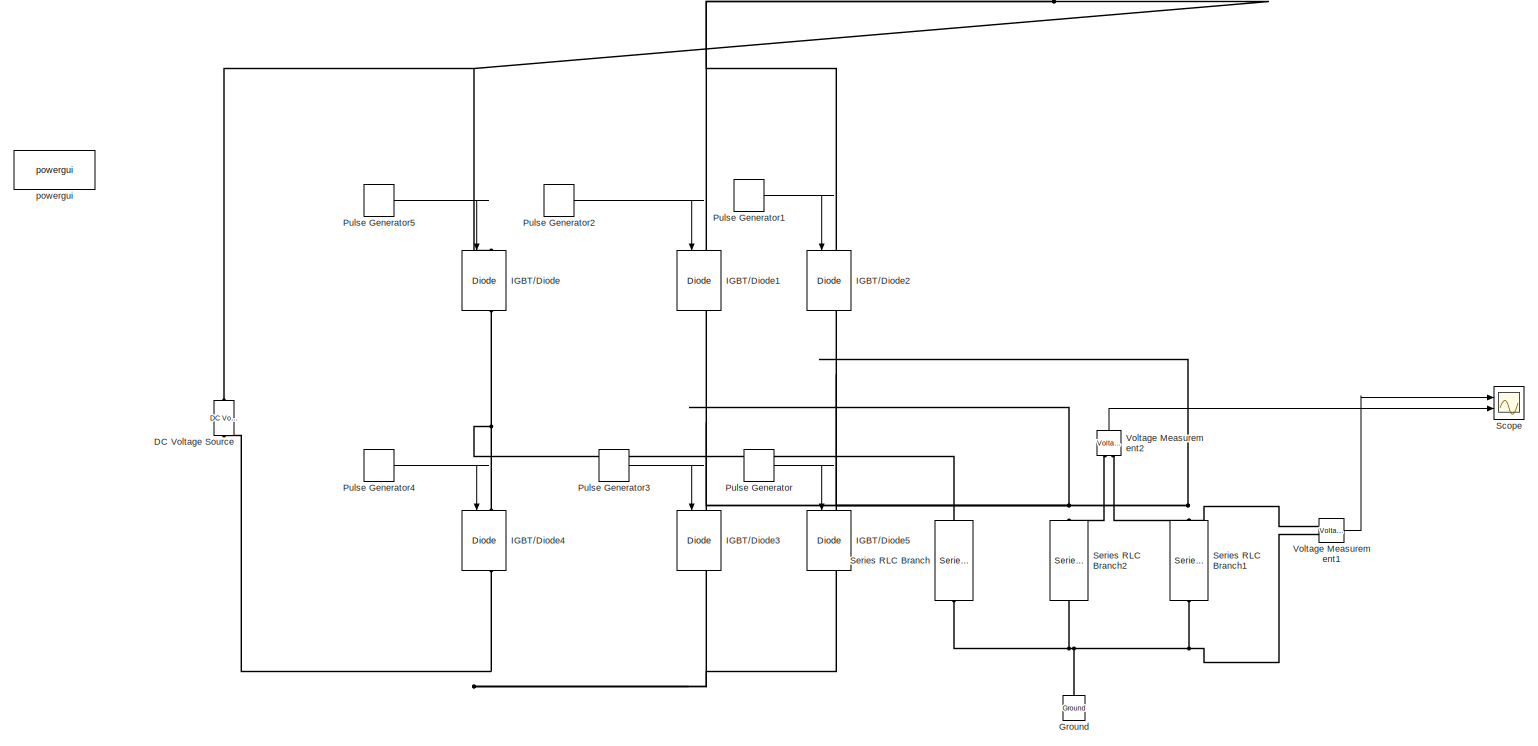
[diagram: root canvas - part 1/1, most of the canvas]
MODEL slx_6644785067fd
KIND model
CONFIG AbsTol = auto
CONFIG EnableMultiTasking = off
CONFIG FixedStep = auto
CONFIG MaxStep = auto
CONFIG MinStep = auto
CONFIG RelTol = 1e-3
CONFIG SampleTimeConstraint = Unconstrained
CONFIG SolverName = ode23tb
CONFIG StartTime = 0.0
CONFIG StopTime = 0.04
BLOCK [Reference] DC Voltage Source  REF=spsDCVoltageSourceLib/DC Voltage Source
  Ports = [0, 0, 0, 0, 0, 1, 1]
  SourceBlock = spsDCVoltageSourceLib/DC Voltage Source
  SourceProductBaseCode = PS
  SourceType = DC Voltage Source
BLOCK [Reference] Ground  REF=spsGroundLib/Ground
  NameLocation = right
  Ports = [0, 0, 0, 0, 0, 1]
  SourceBlock = spsGroundLib/Ground
  SourceProductBaseCode = PS
  SourceType = Ground
BLOCK [Reference] IGBT//Diode  REF=spsIGBTDiodeLib/IGBT//Diode
  NameLocation = left
  Ports = [1, 1, 0, 0, 0, 1, 1]
  SourceBlock = spsIGBTDiodeLib/IGBT//Diode
  SourceProductBaseCode = PS
  SourceType = IGBT/Diode
BLOCK [Reference] IGBT//Diode1  REF=spsIGBTDiodeLib/IGBT//Diode
  NameLocation = left
  Ports = [1, 1, 0, 0, 0, 1, 1]
  SourceBlock = spsIGBTDiodeLib/IGBT//Diode
  SourceProductBaseCode = PS
  SourceType = IGBT/Diode
BLOCK [Reference] IGBT//Diode2  REF=spsIGBTDiodeLib/IGBT//Diode
  NameLocation = left
  Ports = [1, 1, 0, 0, 0, 1, 1]
  SourceBlock = spsIGBTDiodeLib/IGBT//Diode
  SourceProductBaseCode = PS
  SourceType = IGBT/Diode
BLOCK [Reference] IGBT//Diode3  REF=spsIGBTDiodeLib/IGBT//Diode
  NameLocation = left
  Ports = [1, 1, 0, 0, 0, 1, 1]
  SourceBlock = spsIGBTDiodeLib/IGBT//Diode
  SourceProductBaseCode = PS
  SourceType = IGBT/Diode
BLOCK [Reference] IGBT//Diode4  REF=spsIGBTDiodeLib/IGBT//Diode
  NameLocation = left
  Ports = [1, 1, 0, 0, 0, 1, 1]
  SourceBlock = spsIGBTDiodeLib/IGBT//Diode
  SourceProductBaseCode = PS
  SourceType = IGBT/Diode
BLOCK [Reference] IGBT//Diode5  REF=spsIGBTDiodeLib/IGBT//Diode
  NameLocation = left
  Ports = [1, 1, 0, 0, 0, 1, 1]
  SourceBlock = spsIGBTDiodeLib/IGBT//Diode
  SourceProductBaseCode = PS
  SourceType = IGBT/Diode
BLOCK [DiscretePulseGenerator] Pulse Generator
  Period = 20e-3
  PhaseDelay = 3.33e-3
  Ports = [0, 1]
  PulseType = Time based
  PulseWidth = 33.33
BLOCK [DiscretePulseGenerator] Pulse Generator1
  Period = 20e-3
  PhaseDelay = 13.32e-3
  Ports = [0, 1]
  PulseType = Time based
  PulseWidth = 33.33
BLOCK [DiscretePulseGenerator] Pulse Generator2
  Period = 20e-3
  PhaseDelay = 6.66e-3
  Ports = [0, 1]
  PulseType = Time based
  PulseWidth = 33.33
BLOCK [DiscretePulseGenerator] Pulse Generator3
  Period = 20e-3
  PhaseDelay = 16.65e-3
  Ports = [0, 1]
  PulseType = Time based
  PulseWidth = 33.33
BLOCK [DiscretePulseGenerator] Pulse Generator4
  Period = 20e-3
  PhaseDelay = 9.99e-3
  Ports = [0, 1]
  PulseType = Time based
  PulseWidth = 33.33
BLOCK [DiscretePulseGenerator] Pulse Generator5
  Period = 20e-3
  Ports = [0, 1]
  PulseType = Time based
  PulseWidth = 33.33
BLOCK [Scope] Scope
  Floating = off
  NumInputPorts = 2
  Ports = [2]
  ScopeSpecificationString = Simulink.scopes.TimeScopeBlockCfg('CurrentConfiguration', extmgr.ConfigurationSet(extmgr.Configuration('Core','General UI',true),extmgr.Configuration('Core','Source UI',true),extmgr.Configuration('Sources','WiredSimulink',true,'DataLogging',true,'DataLoggingVariableName','phasevoltage','DataLoggingSaveFormat','StructureWithTime'),extmgr.Configuration('Visuals','Time Domain',true,'SerializedDisplay...<+2157ch>
BLOCK [Reference] Series RLC Branch  REF=spsSeriesRLCBranchLib/Series RLC Branch
  NameLocation = left
  Ports = [0, 0, 0, 0, 0, 1, 1]
  SourceBlock = spsSeriesRLCBranchLib/Series RLC Branch
  SourceProductBaseCode = PS
  SourceType = Series RLC Branch
BLOCK [Reference] Series RLC Branch1  REF=spsSeriesRLCBranchLib/Series RLC Branch
  NameLocation = left
  Ports = [0, 0, 0, 0, 0, 1, 1]
  SourceBlock = spsSeriesRLCBranchLib/Series RLC Branch
  SourceProductBaseCode = PS
  SourceType = Series RLC Branch
BLOCK [Reference] Series RLC Branch2  REF=spsSeriesRLCBranchLib/Series RLC Branch
  NameLocation = left
  Ports = [0, 0, 0, 0, 0, 1, 1]
  SourceBlock = spsSeriesRLCBranchLib/Series RLC Branch
  SourceProductBaseCode = PS
  SourceType = Series RLC Branch
BLOCK [Reference] Voltage Measurement1  REF=spsVoltageMeasurementLib/Voltage Measurement
  Ports = [0, 1, 0, 0, 0, 2]
  SourceBlock = spsVoltageMeasurementLib/Voltage Measurement
  SourceProductBaseCode = PS
  SourceType = Voltage Measurement
  UserDataPersistent = on
BLOCK [Reference] Voltage Measurement2  REF=spsVoltageMeasurementLib/Voltage Measurement
  NameLocation = right
  Ports = [0, 1, 0, 0, 0, 2]
  SourceBlock = spsVoltageMeasurementLib/Voltage Measurement
  SourceProductBaseCode = PS
  SourceType = Voltage Measurement
  UserDataPersistent = on
BLOCK [Reference] powergui  REF=spspowerguiLib/powergui
  Ports = []
  Priority = 1
  SourceBlock = spspowerguiLib/powergui
  SourceProductBaseCode = PS
  SourceType = PSB option menu block
LINE Pulse Generator1:1 -> IGBT//Diode2:1
LINE Pulse Generator2:1 -> IGBT//Diode1:1
LINE Pulse Generator3:1 -> IGBT//Diode3:1
LINE Pulse Generator4:1 -> IGBT//Diode4:1
LINE Pulse Generator5:1 -> IGBT//Diode:1
LINE Pulse Generator:1 -> IGBT//Diode5:1
LINE Voltage Measurement1:1 -> Scope:1
LINE Voltage Measurement2:1 -> Scope:2
PNET net1: DC Voltage Source:LConn1 -- IGBT//Diode3:RConn1 -- IGBT//Diode4:RConn1 -- IGBT//Diode5:RConn1
PNET net2: DC Voltage Source:RConn1 -- IGBT//Diode1:LConn1 -- IGBT//Diode2:LConn1 -- IGBT//Diode:LConn1
PNET net3: Ground:LConn1 -- Series RLC Branch1:RConn1 -- Series RLC Branch2:RConn1 -- Series RLC Branch:RConn1 -- Voltage Measurement1:LConn2
PNET net4: IGBT//Diode1:RConn1 -- IGBT//Diode3:LConn1 -- Series RLC Branch2:LConn1 -- Voltage Measurement2:LConn1
PNET net5: IGBT//Diode2:RConn1 -- IGBT//Diode5:LConn1 -- Series RLC Branch1:LConn1 -- Voltage Measurement1:LConn1 -- Voltage Measurement2:LConn2
PNET net6: IGBT//Diode4:LConn1 -- IGBT//Diode:RConn1 -- Series RLC Branch:LConn1
note: PNET lines group multi-terminal physical nets as a canonical sorted terminal list (undirected conserving connections); 2-terminal nets keep the pairwise PLINE form
